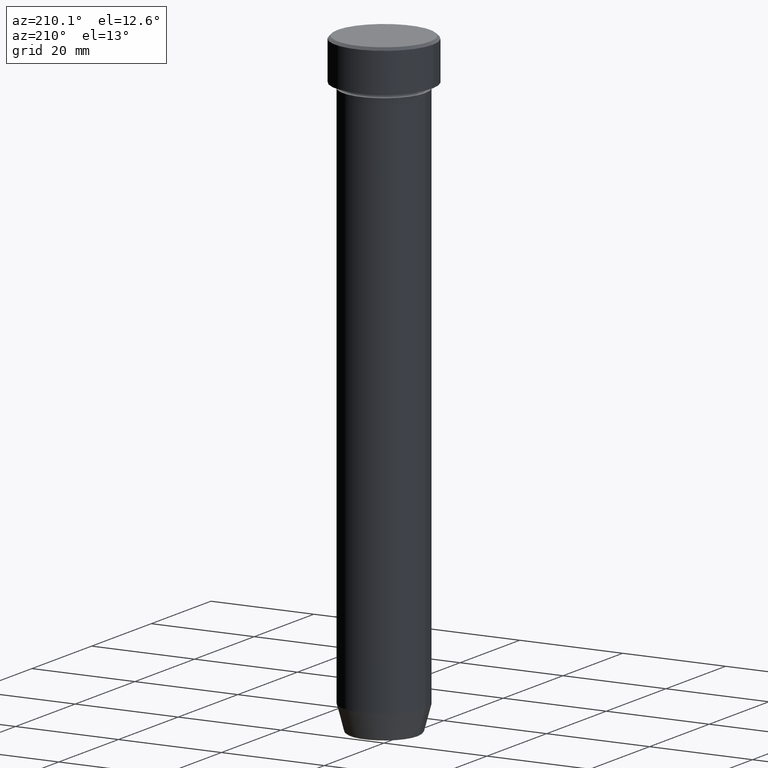
[diagram: clean part render]
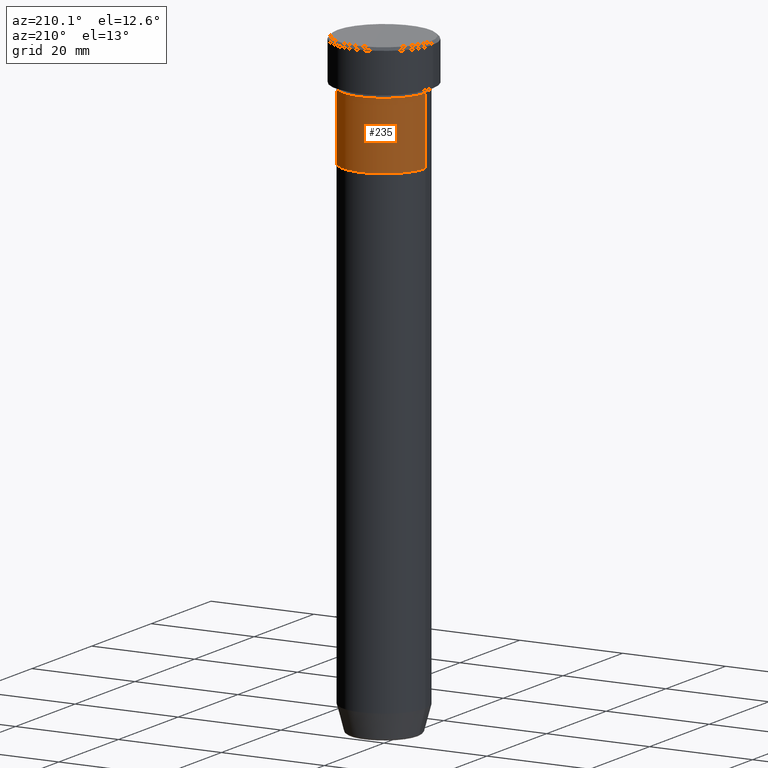
[diagram: same view with one face highlighted and labeled with its STEP entity id]
A machine part, auxiliary view. The second image highlights one B-rep face of the part: STEP entity #235.
In plain terms, the highlighted cylindrical surface (partial cylindrical patch) has radius 8 mm, axis along (-0, -0, 1).
Its self-contained STEP definition (entity closure, byte-faithful):
#12 = DIRECTION ( 'NONE',  ( 1.000000000000000000, 0.000000000000000000, 0.000000000000000000 ) ) ;
#13 = DIRECTION ( 'NONE',  ( -0.000000000000000000, -0.000000000000000000, 1.000000000000000000 ) ) ;
#14 = ORIENTED_EDGE ( 'NONE', *, *, #144, .F. ) ;
#26 = DIRECTION ( 'NONE',  ( 1.000000000000000000, 0.000000000000000000, 0.000000000000000000 ) ) ;
#34 = CARTESIAN_POINT ( 'NONE',  ( -8.000000000000000000, 9.797174393178825657E-16, 0.000000000000000000 ) ) ;
#37 = VECTOR ( 'NONE', #42, 1000.000000000000000 ) ;
#38 = CARTESIAN_POINT ( 'NONE',  ( -8.000000000000000000, 9.797174393178825657E-16, -9.000000000000001776 ) ) ;
#42 = DIRECTION ( 'NONE',  ( -0.000000000000000000, -0.000000000000000000, 1.000000000000000000 ) ) ;
#94 = DIRECTION ( 'NONE',  ( 1.000000000000000000, 0.000000000000000000, 0.000000000000000000 ) ) ;
#98 = CARTESIAN_POINT ( 'NONE',  ( 8.000000000000000000, 0.000000000000000000, -9.000000000000001776 ) ) ;
#103 = DIRECTION ( 'NONE',  ( -0.000000000000000000, -0.000000000000000000, 1.000000000000000000 ) ) ;
#139 = DIRECTION ( 'NONE',  ( -0.000000000000000000, -0.000000000000000000, 1.000000000000000000 ) ) ;
#142 = CARTESIAN_POINT ( 'NONE',  ( 0.000000000000000000, 0.000000000000000000, 0.000000000000000000 ) ) ;
#144 = EDGE_CURVE ( 'NONE', #520, #369, #325, .T. ) ;
#145 = CARTESIAN_POINT ( 'NONE',  ( 0.000000000000000000, 0.000000000000000000, -22.00000000000000000 ) ) ;
#156 = EDGE_CURVE ( 'NONE', #423, #164, #181, .T. ) ;
#158 = CARTESIAN_POINT ( 'NONE',  ( 8.000000000000000000, 0.000000000000000000, -22.00000000000000000 ) ) ;
#164 = VERTEX_POINT ( 'NONE', #38 ) ;
#181 = LINE ( 'NONE', #34, #37 ) ;
#186 = FACE_OUTER_BOUND ( 'NONE', #354, .T. ) ;
#188 = AXIS2_PLACEMENT_3D ( 'NONE', #145, #103, #12 ) ;
#190 = CIRCLE ( 'NONE', #548, 8.000000000000000000 ) ;
#195 = CARTESIAN_POINT ( 'NONE',  ( -8.000000000000000000, 9.797174393178825657E-16, -22.00000000000000000 ) ) ;
#235 = ADVANCED_FACE ( 'NONE', ( #186 ), #554, .T. ) ;
#265 = ORIENTED_EDGE ( 'NONE', *, *, #346, .T. ) ;
#325 = LINE ( 'NONE', #584, #424 ) ;
#346 = EDGE_CURVE ( 'NONE', #520, #423, #474, .T. ) ;
#354 = EDGE_LOOP ( 'NONE', ( #265, #383, #398, #14 ) ) ;
#369 = VERTEX_POINT ( 'NONE', #98 ) ;
#383 = ORIENTED_EDGE ( 'NONE', *, *, #156, .T. ) ;
#398 = ORIENTED_EDGE ( 'NONE', *, *, #513, .F. ) ;
#423 = VERTEX_POINT ( 'NONE', #195 ) ;
#424 = VECTOR ( 'NONE', #139, 1000.000000000000000 ) ;
#433 = CARTESIAN_POINT ( 'NONE',  ( 0.000000000000000000, 0.000000000000000000, -9.000000000000001776 ) ) ;
#474 = CIRCLE ( 'NONE', #188, 8.000000000000000000 ) ;
#506 = AXIS2_PLACEMENT_3D ( 'NONE', #142, #509, #94 ) ;
#509 = DIRECTION ( 'NONE',  ( -0.000000000000000000, -0.000000000000000000, 1.000000000000000000 ) ) ;
#513 = EDGE_CURVE ( 'NONE', #369, #164, #190, .T. ) ;
#520 = VERTEX_POINT ( 'NONE', #158 ) ;
#548 = AXIS2_PLACEMENT_3D ( 'NONE', #433, #13, #26 ) ;
#554 = CYLINDRICAL_SURFACE ( 'NONE', #506, 8.000000000000000000 ) ;
#584 = CARTESIAN_POINT ( 'NONE',  ( 8.000000000000000000, 0.000000000000000000, 0.000000000000000000 ) ) ;